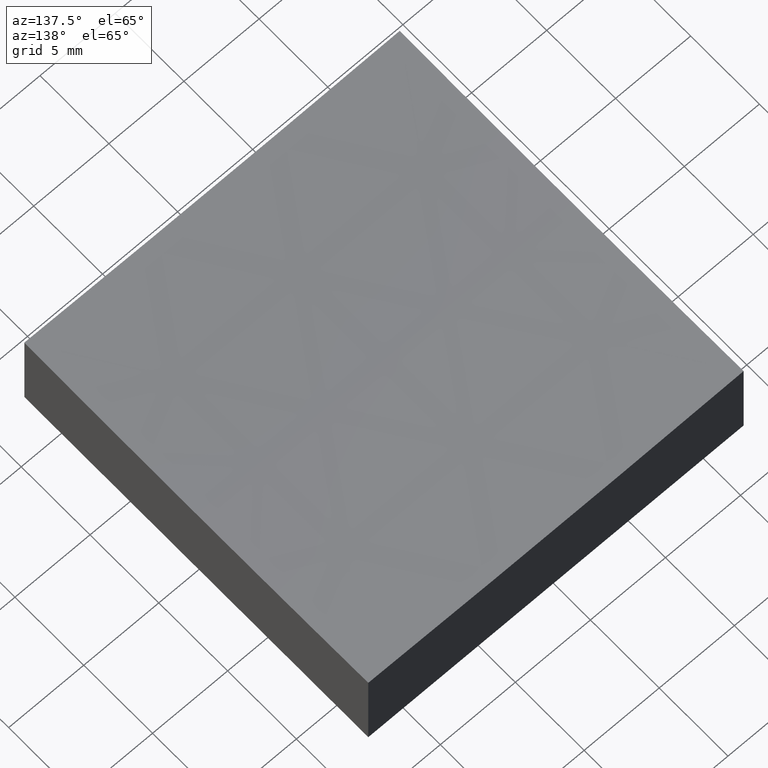
[diagram: clean part render]
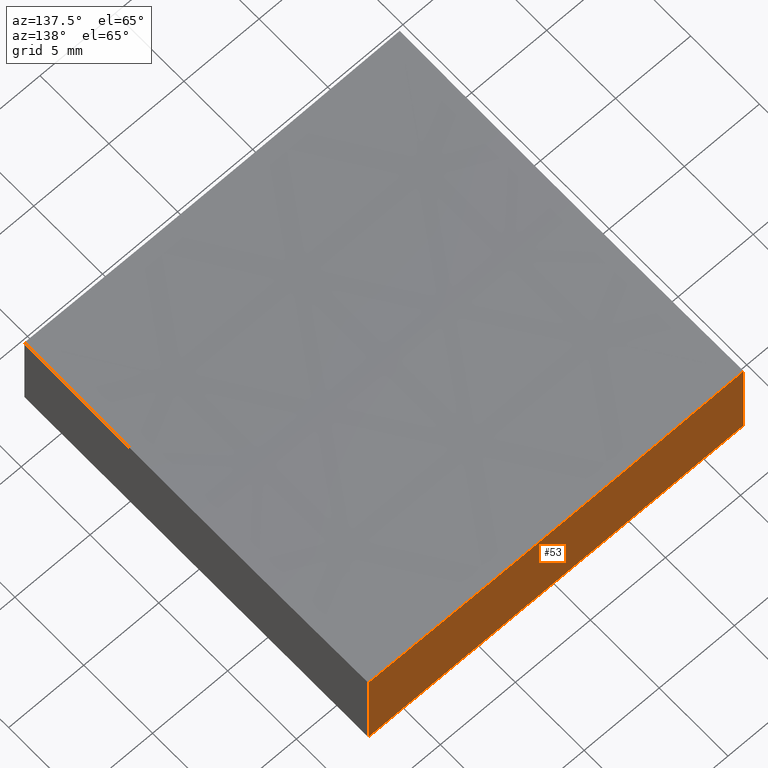
[diagram: same view with one face highlighted and labeled with its STEP entity id]
A machine part, auxiliary view. The second image highlights one B-rep face of the part: STEP entity #53.
In plain terms, the highlighted planar face has unit normal (0, 1, 0).
Its self-contained STEP definition (entity closure, byte-faithful):
#8 = PLANE ( 'NONE',  #133 ) ;
#18 = CARTESIAN_POINT ( 'NONE',  ( -12.50000000000000000, 12.50000000000000000, 6.312597717332835145 ) ) ;
#35 = VERTEX_POINT ( 'NONE', #157 ) ;
#38 = ORIENTED_EDGE ( 'NONE', *, *, #40, .T. ) ;
#40 = EDGE_CURVE ( 'NONE', #35, #215, #232, .T. ) ;
#42 = FACE_OUTER_BOUND ( 'NONE', #121, .T. ) ;
#52 = LINE ( 'NONE', #210, #148 ) ;
#53 = ADVANCED_FACE ( 'NONE', ( #42 ), #8, .T. ) ;
#58 = CARTESIAN_POINT ( 'NONE',  ( 12.50000000000000000, 12.50000000000000000, 20.00000000000000000 ) ) ;
#68 = AXIS2_PLACEMENT_3D ( 'NONE', #152, #245, #90 ) ;
#81 = VERTEX_POINT ( 'NONE', #145 ) ;
#86 = DIRECTION ( 'NONE',  ( 0.0000000000000000000, -0.0000000000000000000, 1.000000000000000000 ) ) ;
#90 = DIRECTION ( 'NONE',  ( 0.0000000000000000000, 0.0000000000000000000, 1.000000000000000000 ) ) ;
#92 = EDGE_CURVE ( 'NONE', #81, #215, #52, .T. ) ;
#95 = LINE ( 'NONE', #251, #107 ) ;
#99 = VERTEX_POINT ( 'NONE', #18 ) ;
#101 = EDGE_CURVE ( 'NONE', #99, #81, #95, .T. ) ;
#107 = VECTOR ( 'NONE', #155, 1000.000000000000000 ) ;
#118 = DIRECTION ( 'NONE',  ( 1.000000000000000000, 0.0000000000000000000, 0.0000000000000000000 ) ) ;
#120 = ORIENTED_EDGE ( 'NONE', *, *, #92, .F. ) ;
#121 = EDGE_LOOP ( 'NONE', ( #216, #38, #120, #234 ) ) ;
#123 = DIRECTION ( 'NONE',  ( 0.0000000000000000000, 1.000000000000000000, 0.0000000000000000000 ) ) ;
#126 = VECTOR ( 'NONE', #138, 1000.000000000000000 ) ;
#133 = AXIS2_PLACEMENT_3D ( 'NONE', #187, #123, #86 ) ;
#138 = DIRECTION ( 'NONE',  ( -0.0000000000000000000, -0.0000000000000000000, -1.000000000000000000 ) ) ;
#145 = CARTESIAN_POINT ( 'NONE',  ( -12.50000000000000000, 12.50000000000000000, 0.0000000000000000000 ) ) ;
#148 = VECTOR ( 'NONE', #118, 1000.000000000000000 ) ;
#150 = CARTESIAN_POINT ( 'NONE',  ( 12.50000000000000000, 12.50000000000000000, 0.0000000000000000000 ) ) ;
#152 = CARTESIAN_POINT ( 'NONE',  ( 6.196712803685608594E-14, 12.50000000000000000, 506.0000000000000000 ) ) ;
#155 = DIRECTION ( 'NONE',  ( -0.0000000000000000000, -0.0000000000000000000, -1.000000000000000000 ) ) ;
#157 = CARTESIAN_POINT ( 'NONE',  ( 12.50000000000000000, 12.50000000000000000, 6.312597717332835145 ) ) ;
#177 = EDGE_CURVE ( 'NONE', #35, #99, #193, .T. ) ;
#187 = CARTESIAN_POINT ( 'NONE',  ( -12.50000000000000000, 12.50000000000000000, 20.00000000000000000 ) ) ;
#193 = CIRCLE ( 'NONE', #68, 499.8437255783050546 ) ;
#210 = CARTESIAN_POINT ( 'NONE',  ( -12.50000000000000000, 12.50000000000000000, 0.0000000000000000000 ) ) ;
#215 = VERTEX_POINT ( 'NONE', #150 ) ;
#216 = ORIENTED_EDGE ( 'NONE', *, *, #177, .F. ) ;
#232 = LINE ( 'NONE', #58, #126 ) ;
#234 = ORIENTED_EDGE ( 'NONE', *, *, #101, .F. ) ;
#245 = DIRECTION ( 'NONE',  ( 0.0000000000000000000, 1.000000000000000000, 0.0000000000000000000 ) ) ;
#251 = CARTESIAN_POINT ( 'NONE',  ( -12.50000000000000000, 12.50000000000000000, 20.00000000000000000 ) ) ;